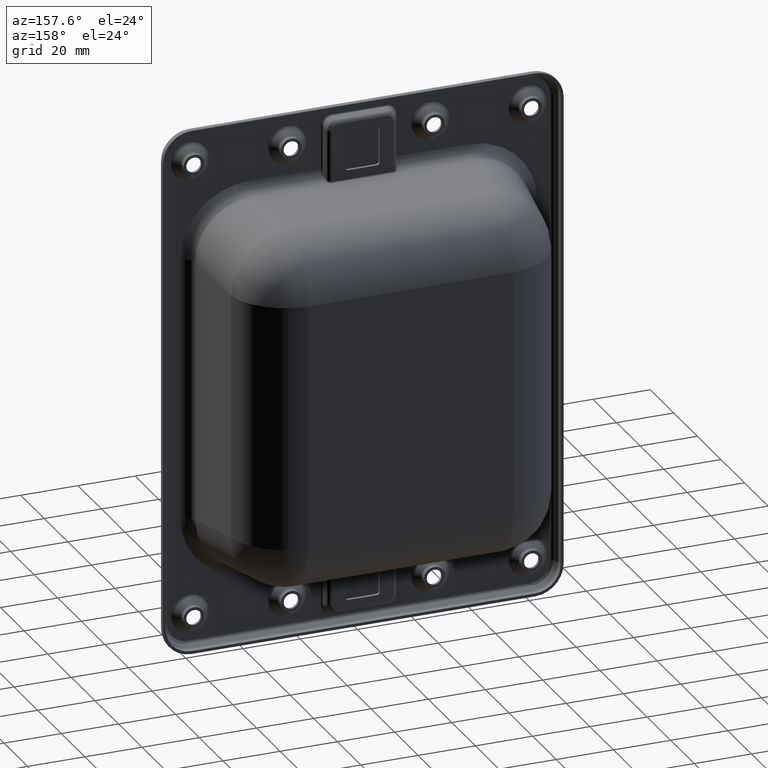
[diagram: clean part render]
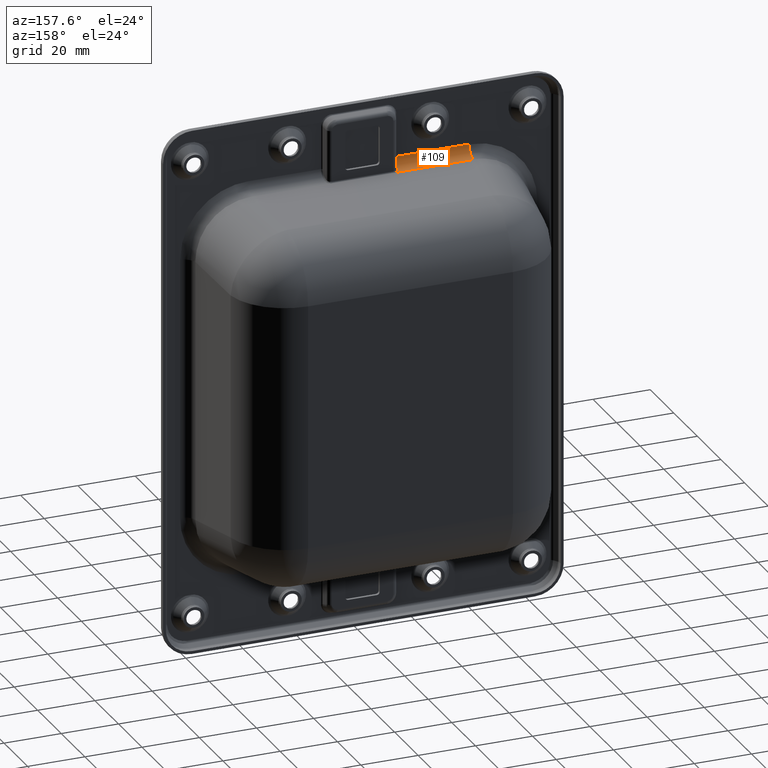
[diagram: same view with one face highlighted and labeled with its STEP entity id]
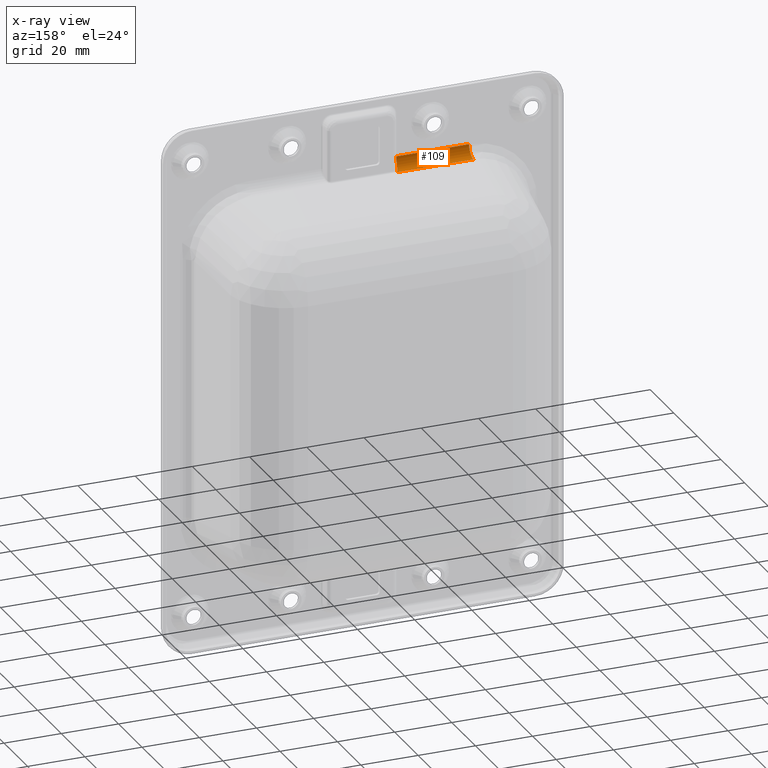
[diagram: x-ray of the same camera — body ghosted, the highlighted face saturated]
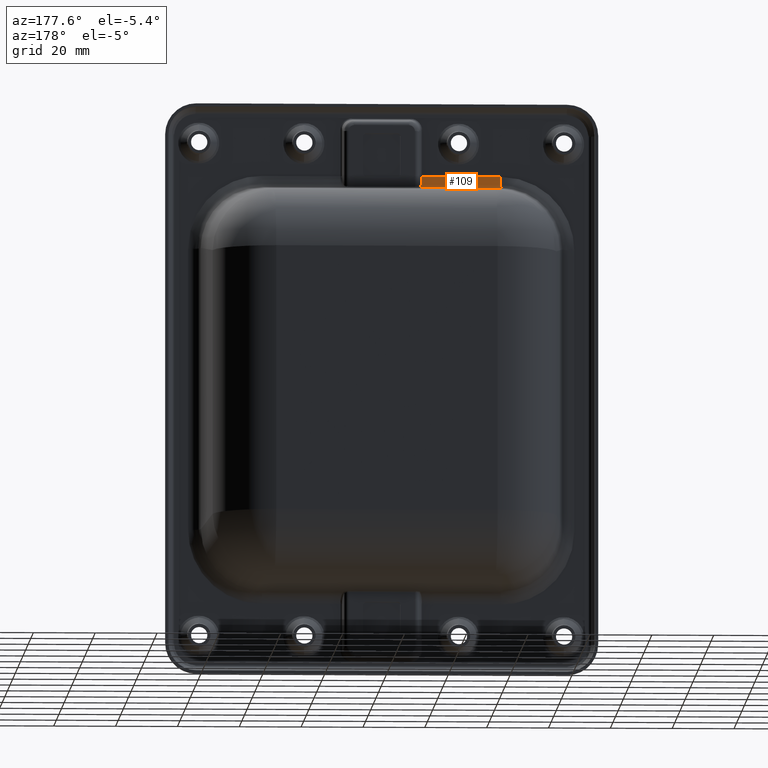
[diagram: same view with one face highlighted and labeled with its STEP entity id]
A machine part, auxiliary view. The second image highlights one B-rep face of the part: STEP entity #109.
The next image is the same camera in x-ray: the body ghosted, the highlighted face saturated — about 0% of this face is hidden behind the body in this view.
A second angle (auxiliary view) of the same face is appended — the face is thin or edge-on in the first view.
In plain terms, the highlighted cylindrical surface (edge-blend (fillet) strip) has radius 4 mm, axis along (1, -0, -0).
Its self-contained STEP definition (entity closure, byte-faithful):
#109=ADVANCED_FACE('',(#1123),#1122,.F.);
#1122=CYLINDRICAL_SURFACE('',#5047,4.00000000000E+00);
#1123=FACE_OUTER_BOUND('',#5048,.T.);
#5044=CARTESIAN_POINT('',(0.00000000000E+00,5.00000000000E+00,6.94236263228E+01));
#5045=DIRECTION('',(1.00000000000E+00,-0.00000000000E+00,-0.00000000000E+00));
#5046=DIRECTION('',(-0.00000000000E+00,-0.00000000000E+00,-1.00000000000E+00));
#5047=AXIS2_PLACEMENT_3D('',#5044,#5045,#5046);
#5048=EDGE_LOOP('',(#9510,#9511,#9512,#9513,#9514));
#9510=ORIENTED_EDGE('',*,*,#11178,.F.);
#9511=ORIENTED_EDGE('',*,*,#11143,.T.);
#9512=ORIENTED_EDGE('',*,*,#11179,.T.);
#9513=ORIENTED_EDGE('',*,*,#11180,.F.);
#9514=ORIENTED_EDGE('',*,*,#11181,.T.);
#11143=EDGE_CURVE('',#13165,#13158,#13166,.T.);
#11178=EDGE_CURVE('',#13165,#13394,#13395,.T.);
#11179=EDGE_CURVE('',#13158,#13185,#13401,.T.);
#11180=EDGE_CURVE('',#13407,#13185,#13408,.T.);
#11181=EDGE_CURVE('',#13407,#13394,#13414,.T.);
#13158=VERTEX_POINT('',#18574);
#13165=VERTEX_POINT('',#18579);
#13166=(BOUNDED_CURVE() B_SPLINE_CURVE(2,(#18580,#18581,#18582),.UNSPECIFIED.,.F.,.F.) B_SPLINE_CURVE_WITH_KNOTS((3,3),(0.00000000000E+00,1.08958540638E+00),.UNSPECIFIED.) CURVE() GEOMETRIC_REPRESENTATION_ITEM() RATIONAL_B_SPLINE_CURVE((1.00000000000E+00,8.55234738824E-01,1.00000000000E+00)) REPRESENTATION_ITEM('') );
#13185=VERTEX_POINT('',#18592);
#13394=VERTEX_POINT('',#18732);
#13395=LINE('',#18733,#18734);
#13401=(BOUNDED_CURVE() B_SPLINE_CURVE(3,(#18736,#18737,#18738,#18739,#18740,#18741,#18742,#18743,#18744,#18745),.UNSPECIFIED.,.F.,.F.) B_SPLINE_CURVE_WITH_KNOTS((4,2,2,2,4),(0.00000000000E+00,4.46253621445E-04,8.92507242890E-04,1.33876086433E-03,1.78501448578E-03),.UNSPECIFIED.) CURVE() GEOMETRIC_REPRESENTATION_ITEM() RATIONAL_B_SPLINE_CURVE((1.00000000000E+00,1.00000000000E+00,1.00000000000E+00,1.00000000000E+00,1.00000000000E+00,1.00000000000E+00,1.00000000000E+00,1.00000000000E+00,1.00000000000E+00,1.00000000000E+00)) REPRESENTATION_ITEM('') );
#13407=VERTEX_POINT('',#18746);
#13408=LINE('',#18747,#18748);
#13414=CIRCLE('',#18753,4.00000000000E+00);
#18574=CARTESIAN_POINT('',(-1.26431112437E+01,3.14858833208E+00,6.58778859437E+01));
#18579=CARTESIAN_POINT('',(-1.32128126954E+01,1.00000000000E+00,6.94236263228E+01));
#18580=CARTESIAN_POINT('',(-1.32128126954E+01,1.00000000000E+00,6.94236263228E+01));
#18581=CARTESIAN_POINT('',(-1.32128126954E+01,1.00000000000E+00,6.69997733585E+01));
#18582=CARTESIAN_POINT('',(-1.26431112437E+01,3.14858833208E+00,6.58778859437E+01));
#18592=CARTESIAN_POINT('',(-1.16536429948E+01,4.51252262638E+00,6.54534417162E+01));
#18732=CARTESIAN_POINT('',(-3.86025186834E+01,1.00000000000E+00,6.94236263228E+01));
#18733=CARTESIAN_POINT('',(-1.32128126954E+01,1.00000000000E+00,6.94236263228E+01));
#18734=VECTOR('',#18735,2.53897059880E+01);
#18735=DIRECTION('',(-1.00000000000E+00,0.00000000000E+00,0.00000000000E+00));
#18736=CARTESIAN_POINT('',(-1.26431112437E+01,3.14858833208E+00,6.58778859437E+01));
#18737=CARTESIAN_POINT('',(-1.26086688303E+01,3.27848543419E+00,6.58100600499E+01));
#18738=CARTESIAN_POINT('',(-1.25633948478E+01,3.40785560497E+00,6.57515827058E+01));
#18739=CARTESIAN_POINT('',(-1.24478535991E+01,3.66323291019E+00,6.56511096764E+01));
#18740=CARTESIAN_POINT('',(-1.23765596234E+01,3.79052620061E+00,6.56088526634E+01));
#18741=CARTESIAN_POINT('',(-1.22105672056E+01,4.02873789424E+00,6.55413621811E+01));
#18742=CARTESIAN_POINT('',(-1.21158523564E+01,4.14050774840E+00,6.55156602166E+01));
#18743=CARTESIAN_POINT('',(-1.18998599426E+01,4.34578656688E+00,6.54761042137E+01));
#18744=CARTESIAN_POINT('',(-1.17812093507E+01,4.43651588415E+00,6.54627741707E+01));
#18745=CARTESIAN_POINT('',(-1.16536429948E+01,4.51252262638E+00,6.54534417162E+01));
#18746=CARTESIAN_POINT('',(-3.86025186834E+01,4.51252262638E+00,6.54534417162E+01));
#18747=CARTESIAN_POINT('',(-3.86025186834E+01,4.51252262638E+00,6.54534417162E+01));
#18748=VECTOR('',#18749,2.69488756885E+01);
#18749=DIRECTION('',(1.00000000000E+00,0.00000000000E+00,0.00000000000E+00));
#18750=CARTESIAN_POINT('',(-3.86025186834E+01,5.00000000000E+00,6.94236263228E+01));
#18751=DIRECTION('',(-1.00000000000E+00,4.75314232418E-13,4.22270260969E-13));
#18752=DIRECTION('',(4.75314232418E-13,1.00000000000E+00,-0.00000000000E+00));
#18753=AXIS2_PLACEMENT_3D('',#18750,#18751,#18752);